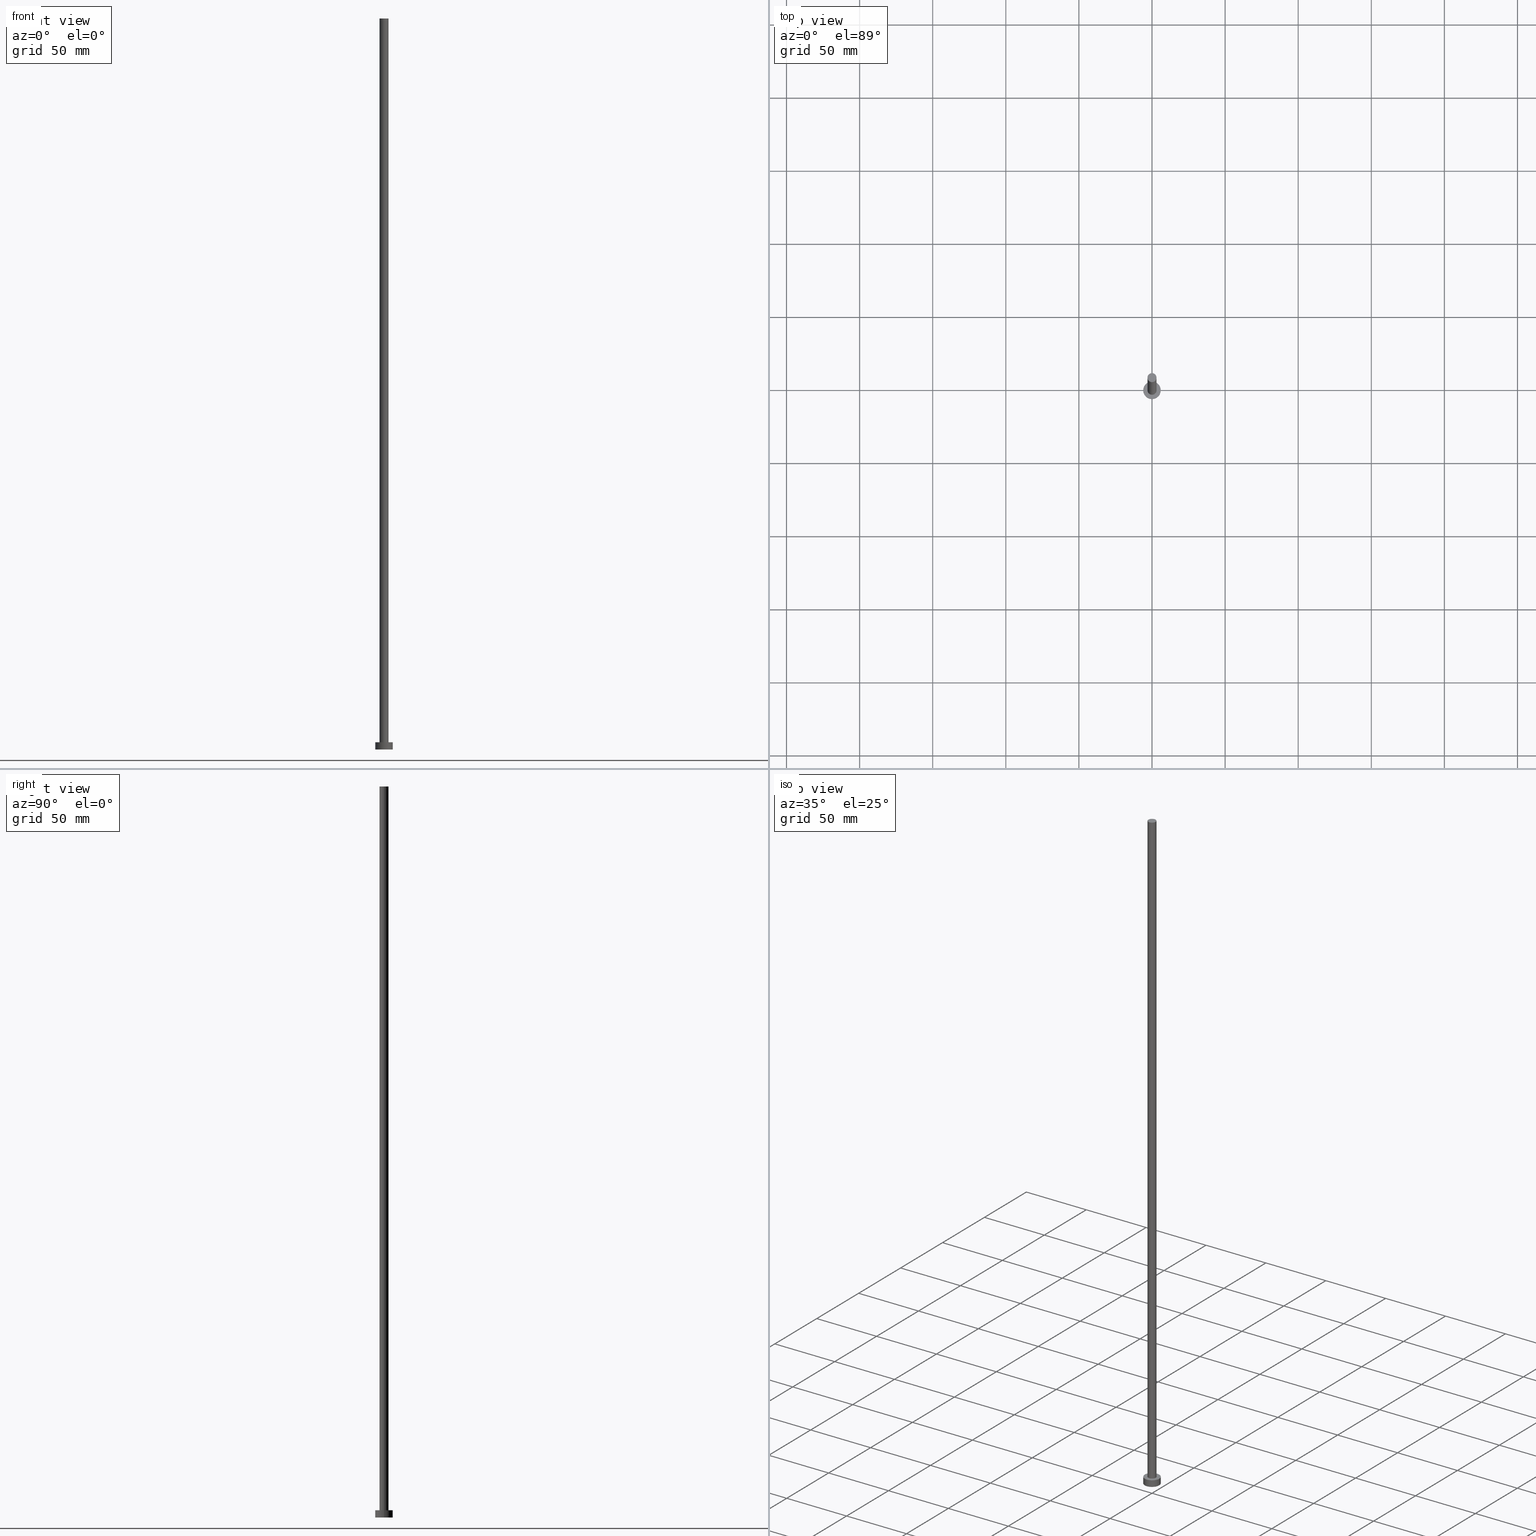
[diagram: canonical four-view strip — front | top / right | iso, engineering-drawing reading convention]
A machine part, canonical four-view strip (front | top / right | iso — engineering-drawing reading convention). The complete STEP part file that produces these views, byte-faithful:
ISO-10303-21;
HEADER;
FILE_DESCRIPTION (( 'STEP AP203' ),
    '1' );
FILE_NAME ('19a6.STEP',
    '2023-02-12T11:32:06',
    ( '' ),
    ( '' ),
    'SwSTEP 2.0',
    'SolidWorks 2019',
    '' );
FILE_SCHEMA (( 'CONFIG_CONTROL_DESIGN' ));
ENDSEC;

DATA;
#1 = VECTOR ( 'NONE', #204, 1000.000000000000000 ) ;
#2 = DATE_AND_TIME ( #17, #35 ) ;
#3 = CARTESIAN_POINT ( 'NONE',  ( 0.000000000000000000, 0.000000000000000000, 5.000000000000000000 ) ) ;
#4 = ORIENTED_EDGE ( 'NONE', *, *, #88, .F. ) ;
#5 = VERTEX_POINT ( 'NONE', #175 ) ;
#6 = AXIS2_PLACEMENT_3D ( 'NONE', #3, #64, #144 ) ;
#7 = CIRCLE ( 'NONE', #143, 6.000000000000000888 ) ;
#8 = SHAPE_DEFINITION_REPRESENTATION ( #95, #173 ) ;
#9 = ADVANCED_FACE ( 'NONE', ( #11, #248 ), #91, .T. ) ;
#10 = CC_DESIGN_APPROVAL ( #16, ( #166 ) ) ;
#11 = FACE_BOUND ( 'NONE', #180, .T. ) ;
#12 = CARTESIAN_POINT ( 'NONE',  ( 6.000000000000000888, 7.347880794884120722E-16, 0.000000000000000000 ) ) ;
#13 =( GEOMETRIC_REPRESENTATION_CONTEXT ( 3 ) GLOBAL_UNCERTAINTY_ASSIGNED_CONTEXT ( ( #215 ) ) GLOBAL_UNIT_ASSIGNED_CONTEXT ( ( #228, #246, #229 ) ) REPRESENTATION_CONTEXT ( 'NONE', 'WORKASPACE' ) );
#14 = APPLICATION_PROTOCOL_DEFINITION ( 'international standard', 'config_control_design', 1994, #70 ) ;
#15 = ORIENTED_EDGE ( 'NONE', *, *, #49, .T. ) ;
#16 = APPROVAL ( #116, 'NEUR�EN�' ) ;
#17 = CALENDAR_DATE ( 2023, 12, 2 ) ;
#18 = AXIS2_PLACEMENT_3D ( 'NONE', #232, #231, #52 ) ;
#19 = AXIS2_PLACEMENT_3D ( 'NONE', #244, #25, #224 ) ;
#20 = APPROVAL_ROLE ( '' ) ;
#21 = CIRCLE ( 'NONE', #172, 3.100000000000000089 ) ;
#22 = CC_DESIGN_PERSON_AND_ORGANIZATION_ASSIGNMENT ( #29, #122, ( #65 ) ) ;
#23 = ORIENTED_EDGE ( 'NONE', *, *, #151, .T. ) ;
#24 = CARTESIAN_POINT ( 'NONE',  ( -6.000000000000000888, 0.000000000000000000, 5.000000000000000000 ) ) ;
#25 = DIRECTION ( 'NONE',  ( 0.000000000000000000, 0.000000000000000000, 1.000000000000000000 ) ) ;
#26 = EDGE_CURVE ( 'NONE', #47, #114, #211, .T. ) ;
#27 = ADVANCED_FACE ( 'NONE', ( #202 ), #39, .F. ) ;
#28 = ORIENTED_EDGE ( 'NONE', *, *, #208, .F. ) ;
#29 = PERSON_AND_ORGANIZATION ( #46, #90 ) ;
#30 = PERSON_AND_ORGANIZATION ( #46, #90 ) ;
#31 = EDGE_CURVE ( 'NONE', #97, #5, #184, .T. ) ;
#32 = DIRECTION ( 'NONE',  ( 1.000000000000000000, 0.000000000000000000, 0.000000000000000000 ) ) ;
#33 = PERSON_AND_ORGANIZATION_ROLE ( 'design_owner' ) ;
#34 = ORIENTED_EDGE ( 'NONE', *, *, #51, .T. ) ;
#35 = LOCAL_TIME ( 12, 32, 6.000000000000000000, #253 ) ;
#36 = EDGE_CURVE ( 'NONE', #207, #107, #59, .T. ) ;
#37 = DIRECTION ( 'NONE',  ( 0.000000000000000000, 0.000000000000000000, 1.000000000000000000 ) ) ;
#38 = VERTEX_POINT ( 'NONE', #174 ) ;
#39 = PLANE ( 'NONE',  #99 ) ;
#40 = EDGE_LOOP ( 'NONE', ( #28, #135, #68, #63 ) ) ;
#41 = DIRECTION ( 'NONE',  ( -0.000000000000000000, -0.000000000000000000, -1.000000000000000000 ) ) ;
#42 = APPROVAL_PERSON_ORGANIZATION ( #130, #112, #187 ) ;
#43 = DIRECTION ( 'NONE',  ( -0.000000000000000000, -0.000000000000000000, -1.000000000000000000 ) ) ;
#44 = ADVANCED_FACE ( 'NONE', ( #193 ), #153, .T. ) ;
#45 = CARTESIAN_POINT ( 'NONE',  ( -3.100000000000000089, 0.000000000000000000, 500.0000000000000000 ) ) ;
#46 = PERSON ( 'NEUR�EN�', 'NEUR�EN�', 'NEUR�EN�', ('NEUR�EN�'), ('NEUR�EN�'), ('NEUR�EN�') ) ;
#47 = VERTEX_POINT ( 'NONE', #73 ) ;
#48 = FACE_OUTER_BOUND ( 'NONE', #79, .T. ) ;
#49 = EDGE_CURVE ( 'NONE', #5, #97, #72, .T. ) ;
#50 = CYLINDRICAL_SURFACE ( 'NONE', #61, 6.000000000000000888 ) ;
#51 = EDGE_CURVE ( 'NONE', #97, #38, #124, .T. ) ;
#52 = DIRECTION ( 'NONE',  ( -1.000000000000000000, 0.000000000000000000, 0.000000000000000000 ) ) ;
#53 = CC_DESIGN_DATE_AND_TIME_ASSIGNMENT ( #100, #185, ( #86 ) ) ;
#54 = CC_DESIGN_APPROVAL ( #123, ( #65 ) ) ;
#55 = APPROVAL_DATE_TIME ( #233, #16 ) ;
#56 = CARTESIAN_POINT ( 'NONE',  ( -6.000000000000000888, 0.000000000000000000, 5.000000000000000000 ) ) ;
#57 = PERSON_AND_ORGANIZATION ( #46, #90 ) ;
#58 = DIRECTION ( 'NONE',  ( 0.000000000000000000, 0.000000000000000000, 1.000000000000000000 ) ) ;
#59 = CIRCLE ( 'NONE', #176, 3.100000000000000089 ) ;
#60 = ORIENTED_EDGE ( 'NONE', *, *, #36, .F. ) ;
#61 = AXIS2_PLACEMENT_3D ( 'NONE', #108, #41, #186 ) ;
#62 = DATE_TIME_ROLE ( 'creation_date' ) ;
#63 = ORIENTED_EDGE ( 'NONE', *, *, #145, .F. ) ;
#64 = DIRECTION ( 'NONE',  ( 0.000000000000000000, 0.000000000000000000, 1.000000000000000000 ) ) ;
#65 = PRODUCT_DEFINITION ( 'NEZN�M�', '', #166, #142 ) ;
#66 = COORDINATED_UNIVERSAL_TIME_OFFSET ( 1, 0, .AHEAD. ) ;
#67 = CARTESIAN_POINT ( 'NONE',  ( 0.000000000000000000, 0.000000000000000000, 0.000000000000000000 ) ) ;
#68 = ORIENTED_EDGE ( 'NONE', *, *, #26, .T. ) ;
#69 = CARTESIAN_POINT ( 'NONE',  ( 3.100000000000000089, 3.796405077356794918E-16, 500.0000000000000000 ) ) ;
#70 = APPLICATION_CONTEXT ( 'configuration controlled 3d designs of mechanical parts and assemblies' ) ;
#71 = EDGE_LOOP ( 'NONE', ( #4, #77, #34, #75 ) ) ;
#72 = CIRCLE ( 'NONE', #221, 6.000000000000000888 ) ;
#73 = CARTESIAN_POINT ( 'NONE',  ( 3.100000000000000089, 3.796405077356794918E-16, 5.000000000000000000 ) ) ;
#74 = DIRECTION ( 'NONE',  ( 0.000000000000000000, 0.000000000000000000, 1.000000000000000000 ) ) ;
#75 = ORIENTED_EDGE ( 'NONE', *, *, #164, .T. ) ;
#76 = COORDINATED_UNIVERSAL_TIME_OFFSET ( 1, 0, .AHEAD. ) ;
#77 = ORIENTED_EDGE ( 'NONE', *, *, #31, .F. ) ;
#78 = CALENDAR_DATE ( 2023, 12, 2 ) ;
#79 = EDGE_LOOP ( 'NONE', ( #227, #254, #234, #178 ) ) ;
#80 = PERSON_AND_ORGANIZATION ( #46, #90 ) ;
#81 = AXIS2_PLACEMENT_3D ( 'NONE', #162, #37, #32 ) ;
#82 = CC_DESIGN_SECURITY_CLASSIFICATION ( #86, ( #166 ) ) ;
#83 = CARTESIAN_POINT ( 'NONE',  ( 6.000000000000000888, 7.347880794884120722E-16, 5.000000000000000000 ) ) ;
#84 = CARTESIAN_POINT ( 'NONE',  ( -3.100000000000000089, 0.000000000000000000, 5.000000000000000000 ) ) ;
#85 = DIRECTION ( 'NONE',  ( 0.000000000000000000, 0.000000000000000000, 1.000000000000000000 ) ) ;
#86 = SECURITY_CLASSIFICATION ( '', '', #220 ) ;
#87 = AXIS2_PLACEMENT_3D ( 'NONE', #146, #225, #128 ) ;
#88 = EDGE_CURVE ( 'NONE', #5, #237, #133, .T. ) ;
#89 = LINE ( 'NONE', #45, #150 ) ;
#90 = ORGANIZATION ( 'NEUR�EN�', 'NEUR�EN�', '' ) ;
#91 = PLANE ( 'NONE',  #119 ) ;
#92 = DIRECTION ( 'NONE',  ( 0.000000000000000000, 0.000000000000000000, 1.000000000000000000 ) ) ;
#93 = CARTESIAN_POINT ( 'NONE',  ( 0.000000000000000000, 0.000000000000000000, 5.000000000000000000 ) ) ;
#94 = CC_DESIGN_PERSON_AND_ORGANIZATION_ASSIGNMENT ( #30, #118, ( #166 ) ) ;
#95 = PRODUCT_DEFINITION_SHAPE ( 'NONE', 'NONE',  #65 ) ;
#96 = ORIENTED_EDGE ( 'NONE', *, *, #26, .F. ) ;
#97 = VERTEX_POINT ( 'NONE', #24 ) ;
#98 = COORDINATED_UNIVERSAL_TIME_OFFSET ( 1, 0, .AHEAD. ) ;
#99 = AXIS2_PLACEMENT_3D ( 'NONE', #255, #219, #165 ) ;
#100 = DATE_AND_TIME ( #236, #159 ) ;
#101 = DIRECTION ( 'NONE',  ( -0.000000000000000000, -0.000000000000000000, -1.000000000000000000 ) ) ;
#102 = EDGE_CURVE ( 'NONE', #107, #47, #241, .T. ) ;
#103 = DIRECTION ( 'NONE',  ( 0.000000000000000000, 0.000000000000000000, 1.000000000000000000 ) ) ;
#104 = DIRECTION ( 'NONE',  ( 1.000000000000000000, 0.000000000000000000, -0.000000000000000000 ) ) ;
#105 = VECTOR ( 'NONE', #191, 1000.000000000000000 ) ;
#106 = PLANE ( 'NONE',  #170 ) ;
#107 = VERTEX_POINT ( 'NONE', #210 ) ;
#108 = CARTESIAN_POINT ( 'NONE',  ( 0.000000000000000000, 0.000000000000000000, 5.000000000000000000 ) ) ;
#109 = CC_DESIGN_DATE_AND_TIME_ASSIGNMENT ( #2, #62, ( #65 ) ) ;
#110 = CYLINDRICAL_SURFACE ( 'NONE', #18, 6.000000000000000888 ) ;
#111 = CARTESIAN_POINT ( 'NONE',  ( 0.000000000000000000, 0.000000000000000000, 500.0000000000000000 ) ) ;
#112 = APPROVAL ( #168, 'NEUR�EN�' ) ;
#113 = CLOSED_SHELL ( 'NONE', ( #205, #177, #235, #9, #27, #44, #194 ) ) ;
#114 = VERTEX_POINT ( 'NONE', #84 ) ;
#115 = LOCAL_TIME ( 12, 32, 6.000000000000000000, #98 ) ;
#116 = APPROVAL_STATUS ( 'not_yet_approved' ) ;
#117 = DIRECTION ( 'NONE',  ( -0.000000000000000000, -0.000000000000000000, -1.000000000000000000 ) ) ;
#118 = PERSON_AND_ORGANIZATION_ROLE ( 'design_supplier' ) ;
#119 = AXIS2_PLACEMENT_3D ( 'NONE', #249, #74, #196 ) ;
#120 = AXIS2_PLACEMENT_3D ( 'NONE', #190, #85, #169 ) ;
#121 = DIRECTION ( 'NONE',  ( 1.000000000000000000, 0.000000000000000000, 0.000000000000000000 ) ) ;
#122 = PERSON_AND_ORGANIZATION_ROLE ( 'creator' ) ;
#123 = APPROVAL ( #141, 'NEUR�EN�' ) ;
#124 = LINE ( 'NONE', #56, #1 ) ;
#125 = CARTESIAN_POINT ( 'NONE',  ( 0.000000000000000000, 0.000000000000000000, 500.0000000000000000 ) ) ;
#126 = CIRCLE ( 'NONE', #19, 6.000000000000000888 ) ;
#127 = FACE_OUTER_BOUND ( 'NONE', #163, .T. ) ;
#128 = DIRECTION ( 'NONE',  ( -1.000000000000000000, 0.000000000000000000, 0.000000000000000000 ) ) ;
#129 = AXIS2_PLACEMENT_3D ( 'NONE', #111, #117, #245 ) ;
#130 = PERSON_AND_ORGANIZATION ( #46, #90 ) ;
#131 = DIRECTION ( 'NONE',  ( 1.000000000000000000, 0.000000000000000000, 0.000000000000000000 ) ) ;
#132 = CC_DESIGN_APPROVAL ( #112, ( #86 ) ) ;
#133 = LINE ( 'NONE', #83, #105 ) ;
#134 = MANIFOLD_SOLID_BREP ( 'P�idat vysunut�m3', #113 ) ;
#135 = ORIENTED_EDGE ( 'NONE', *, *, #102, .T. ) ;
#136 = PERSON_AND_ORGANIZATION ( #46, #90 ) ;
#137 = PERSON_AND_ORGANIZATION ( #46, #90 ) ;
#138 = CC_DESIGN_PERSON_AND_ORGANIZATION_ASSIGNMENT ( #198, #251, ( #86 ) ) ;
#139 = AXIS2_PLACEMENT_3D ( 'NONE', #156, #58, #121 ) ;
#140 = APPROVAL_PERSON_ORGANIZATION ( #80, #16, #197 ) ;
#141 = APPROVAL_STATUS ( 'not_yet_approved' ) ;
#142 = DESIGN_CONTEXT ( 'detailed design', #70, 'design' ) ;
#143 = AXIS2_PLACEMENT_3D ( 'NONE', #67, #147, #155 ) ;
#144 = DIRECTION ( 'NONE',  ( 1.000000000000000000, 0.000000000000000000, 0.000000000000000000 ) ) ;
#145 = EDGE_CURVE ( 'NONE', #207, #114, #89, .T. ) ;
#146 = CARTESIAN_POINT ( 'NONE',  ( 0.000000000000000000, 0.000000000000000000, 500.0000000000000000 ) ) ;
#147 = DIRECTION ( 'NONE',  ( 0.000000000000000000, 0.000000000000000000, 1.000000000000000000 ) ) ;
#148 = DIRECTION ( 'NONE',  ( 1.000000000000000000, 0.000000000000000000, 0.000000000000000000 ) ) ;
#149 = DIRECTION ( 'NONE',  ( 0.000000000000000000, 0.000000000000000000, 1.000000000000000000 ) ) ;
#150 = VECTOR ( 'NONE', #43, 1000.000000000000000 ) ;
#151 = EDGE_CURVE ( 'NONE', #114, #47, #21, .T. ) ;
#152 = EDGE_LOOP ( 'NONE', ( #217, #60, #252, #23 ) ) ;
#153 = CYLINDRICAL_SURFACE ( 'NONE', #129, 3.100000000000000089 ) ;
#154 = FACE_OUTER_BOUND ( 'NONE', #71, .T. ) ;
#155 = DIRECTION ( 'NONE',  ( 1.000000000000000000, 0.000000000000000000, 0.000000000000000000 ) ) ;
#156 = CARTESIAN_POINT ( 'NONE',  ( 0.000000000000000000, 0.000000000000000000, 5.000000000000000000 ) ) ;
#157 = CALENDAR_DATE ( 2023, 12, 2 ) ;
#158 = ORIENTED_EDGE ( 'NONE', *, *, #31, .T. ) ;
#159 = LOCAL_TIME ( 12, 32, 6.000000000000000000, #161 ) ;
#160 = CC_DESIGN_PERSON_AND_ORGANIZATION_ASSIGNMENT ( #57, #33, ( #179 ) ) ;
#161 = COORDINATED_UNIVERSAL_TIME_OFFSET ( 1, 0, .AHEAD. ) ;
#162 = CARTESIAN_POINT ( 'NONE',  ( 0.000000000000000000, 0.000000000000000000, 0.000000000000000000 ) ) ;
#163 = EDGE_LOOP ( 'NONE', ( #239, #188 ) ) ;
#164 = EDGE_CURVE ( 'NONE', #38, #237, #126, .T. ) ;
#165 = DIRECTION ( 'NONE',  ( 1.000000000000000000, 0.000000000000000000, -0.000000000000000000 ) ) ;
#166 = PRODUCT_DEFINITION_FORMATION_WITH_SPECIFIED_SOURCE ( 'LIBOVOLN�', '', #179, .NOT_KNOWN. ) ;
#167 = CYLINDRICAL_SURFACE ( 'NONE', #87, 3.100000000000000089 ) ;
#168 = APPROVAL_STATUS ( 'not_yet_approved' ) ;
#169 = DIRECTION ( 'NONE',  ( 1.000000000000000000, 0.000000000000000000, 0.000000000000000000 ) ) ;
#170 = AXIS2_PLACEMENT_3D ( 'NONE', #189, #103, #104 ) ;
#171 = CARTESIAN_POINT ( 'NONE',  ( 0.000000000000000000, 0.000000000000000000, 5.000000000000000000 ) ) ;
#172 = AXIS2_PLACEMENT_3D ( 'NONE', #171, #149, #131 ) ;
#173 = ADVANCED_BREP_SHAPE_REPRESENTATION ( '19a6', ( #134, #81 ), #13 ) ;
#174 = CARTESIAN_POINT ( 'NONE',  ( -6.000000000000000888, 0.000000000000000000, 0.000000000000000000 ) ) ;
#175 = CARTESIAN_POINT ( 'NONE',  ( 6.000000000000000888, 7.347880794884120722E-16, 5.000000000000000000 ) ) ;
#176 = AXIS2_PLACEMENT_3D ( 'NONE', #125, #242, #148 ) ;
#177 = ADVANCED_FACE ( 'NONE', ( #48 ), #50, .T. ) ;
#178 = ORIENTED_EDGE ( 'NONE', *, *, #51, .F. ) ;
#179 = PRODUCT ( '19a6', '19a6', '', ( #183 ) ) ;
#180 = EDGE_LOOP ( 'NONE', ( #182, #96 ) ) ;
#181 = DATE_AND_TIME ( #78, #115 ) ;
#182 = ORIENTED_EDGE ( 'NONE', *, *, #151, .F. ) ;
#183 = MECHANICAL_CONTEXT ( 'NONE', #243, 'mechanical' ) ;
#184 = CIRCLE ( 'NONE', #6, 6.000000000000000888 ) ;
#185 = DATE_TIME_ROLE ( 'classification_date' ) ;
#186 = DIRECTION ( 'NONE',  ( -1.000000000000000000, 0.000000000000000000, 0.000000000000000000 ) ) ;
#187 = APPROVAL_ROLE ( '' ) ;
#188 = ORIENTED_EDGE ( 'NONE', *, *, #208, .T. ) ;
#189 = CARTESIAN_POINT ( 'NONE',  ( 0.000000000000000000, 0.000000000000000000, 500.0000000000000000 ) ) ;
#190 = CARTESIAN_POINT ( 'NONE',  ( 0.000000000000000000, 0.000000000000000000, 500.0000000000000000 ) ) ;
#191 = DIRECTION ( 'NONE',  ( -0.000000000000000000, -0.000000000000000000, -1.000000000000000000 ) ) ;
#192 = FACE_OUTER_BOUND ( 'NONE', #40, .T. ) ;
#193 = FACE_OUTER_BOUND ( 'NONE', #152, .T. ) ;
#194 = ADVANCED_FACE ( 'NONE', ( #127 ), #106, .T. ) ;
#195 = LOCAL_TIME ( 12, 32, 6.000000000000000000, #66 ) ;
#196 = DIRECTION ( 'NONE',  ( 1.000000000000000000, 0.000000000000000000, -0.000000000000000000 ) ) ;
#197 = APPROVAL_ROLE ( '' ) ;
#198 = PERSON_AND_ORGANIZATION ( #46, #90 ) ;
#199 = APPROVAL_DATE_TIME ( #181, #123 ) ;
#200 = CC_DESIGN_PERSON_AND_ORGANIZATION_ASSIGNMENT ( #136, #218, ( #166 ) ) ;
#201 = CIRCLE ( 'NONE', #120, 3.100000000000000089 ) ;
#202 = FACE_OUTER_BOUND ( 'NONE', #203, .T. ) ;
#203 = EDGE_LOOP ( 'NONE', ( #216, #222 ) ) ;
#204 = DIRECTION ( 'NONE',  ( -0.000000000000000000, -0.000000000000000000, -1.000000000000000000 ) ) ;
#205 = ADVANCED_FACE ( 'NONE', ( #192 ), #167, .T. ) ;
#206 = CARTESIAN_POINT ( 'NONE',  ( -3.100000000000000089, 0.000000000000000000, 500.0000000000000000 ) ) ;
#207 = VERTEX_POINT ( 'NONE', #206 ) ;
#208 = EDGE_CURVE ( 'NONE', #107, #207, #201, .T. ) ;
#209 = APPROVAL_DATE_TIME ( #226, #112 ) ;
#210 = CARTESIAN_POINT ( 'NONE',  ( 3.100000000000000089, 3.796405077356794918E-16, 500.0000000000000000 ) ) ;
#211 = CIRCLE ( 'NONE', #139, 3.100000000000000089 ) ;
#212 = LOCAL_TIME ( 12, 32, 6.000000000000000000, #76 ) ;
#213 = EDGE_CURVE ( 'NONE', #237, #38, #7, .T. ) ;
#214 = APPLICATION_PROTOCOL_DEFINITION ( 'international standard', 'config_control_design', 1994, #243 ) ;
#215 = UNCERTAINTY_MEASURE_WITH_UNIT (LENGTH_MEASURE( 1.000000000000000082E-05 ), #228, 'distance_accuracy_value', 'NONE');
#216 = ORIENTED_EDGE ( 'NONE', *, *, #164, .F. ) ;
#217 = ORIENTED_EDGE ( 'NONE', *, *, #102, .F. ) ;
#218 = PERSON_AND_ORGANIZATION_ROLE ( 'creator' ) ;
#219 = DIRECTION ( 'NONE',  ( 0.000000000000000000, 0.000000000000000000, 1.000000000000000000 ) ) ;
#220 = SECURITY_CLASSIFICATION_LEVEL ( 'unclassified' ) ;
#221 = AXIS2_PLACEMENT_3D ( 'NONE', #93, #92, #250 ) ;
#222 = ORIENTED_EDGE ( 'NONE', *, *, #213, .F. ) ;
#223 = PRODUCT_RELATED_PRODUCT_CATEGORY ( 'detail', '', ( #179 ) ) ;
#224 = DIRECTION ( 'NONE',  ( 1.000000000000000000, 0.000000000000000000, 0.000000000000000000 ) ) ;
#225 = DIRECTION ( 'NONE',  ( -0.000000000000000000, -0.000000000000000000, -1.000000000000000000 ) ) ;
#226 = DATE_AND_TIME ( #238, #195 ) ;
#227 = ORIENTED_EDGE ( 'NONE', *, *, #49, .F. ) ;
#228 =( LENGTH_UNIT ( ) NAMED_UNIT ( * ) SI_UNIT ( .MILLI., .METRE. ) );
#229 =( NAMED_UNIT ( * ) SI_UNIT ( $, .STERADIAN. ) SOLID_ANGLE_UNIT ( ) );
#230 = APPROVAL_PERSON_ORGANIZATION ( #137, #123, #20 ) ;
#231 = DIRECTION ( 'NONE',  ( -0.000000000000000000, -0.000000000000000000, -1.000000000000000000 ) ) ;
#232 = CARTESIAN_POINT ( 'NONE',  ( 0.000000000000000000, 0.000000000000000000, 5.000000000000000000 ) ) ;
#233 = DATE_AND_TIME ( #157, #212 ) ;
#234 = ORIENTED_EDGE ( 'NONE', *, *, #213, .T. ) ;
#235 = ADVANCED_FACE ( 'NONE', ( #154 ), #110, .T. ) ;
#236 = CALENDAR_DATE ( 2023, 12, 2 ) ;
#237 = VERTEX_POINT ( 'NONE', #12 ) ;
#238 = CALENDAR_DATE ( 2023, 12, 2 ) ;
#239 = ORIENTED_EDGE ( 'NONE', *, *, #36, .T. ) ;
#240 = EDGE_LOOP ( 'NONE', ( #158, #15 ) ) ;
#241 = LINE ( 'NONE', #69, #247 ) ;
#242 = DIRECTION ( 'NONE',  ( 0.000000000000000000, 0.000000000000000000, 1.000000000000000000 ) ) ;
#243 = APPLICATION_CONTEXT ( 'configuration controlled 3d designs of mechanical parts and assemblies' ) ;
#244 = CARTESIAN_POINT ( 'NONE',  ( 0.000000000000000000, 0.000000000000000000, 0.000000000000000000 ) ) ;
#245 = DIRECTION ( 'NONE',  ( -1.000000000000000000, 0.000000000000000000, 0.000000000000000000 ) ) ;
#246 =( NAMED_UNIT ( * ) PLANE_ANGLE_UNIT ( ) SI_UNIT ( $, .RADIAN. ) );
#247 = VECTOR ( 'NONE', #101, 1000.000000000000000 ) ;
#248 = FACE_OUTER_BOUND ( 'NONE', #240, .T. ) ;
#249 = CARTESIAN_POINT ( 'NONE',  ( 0.000000000000000000, 0.000000000000000000, 5.000000000000000000 ) ) ;
#250 = DIRECTION ( 'NONE',  ( 1.000000000000000000, 0.000000000000000000, 0.000000000000000000 ) ) ;
#251 = PERSON_AND_ORGANIZATION_ROLE ( 'classification_officer' ) ;
#252 = ORIENTED_EDGE ( 'NONE', *, *, #145, .T. ) ;
#253 = COORDINATED_UNIVERSAL_TIME_OFFSET ( 1, 0, .AHEAD. ) ;
#254 = ORIENTED_EDGE ( 'NONE', *, *, #88, .T. ) ;
#255 = CARTESIAN_POINT ( 'NONE',  ( 0.000000000000000000, 0.000000000000000000, 0.000000000000000000 ) ) ;
ENDSEC;
END-ISO-10303-21;
